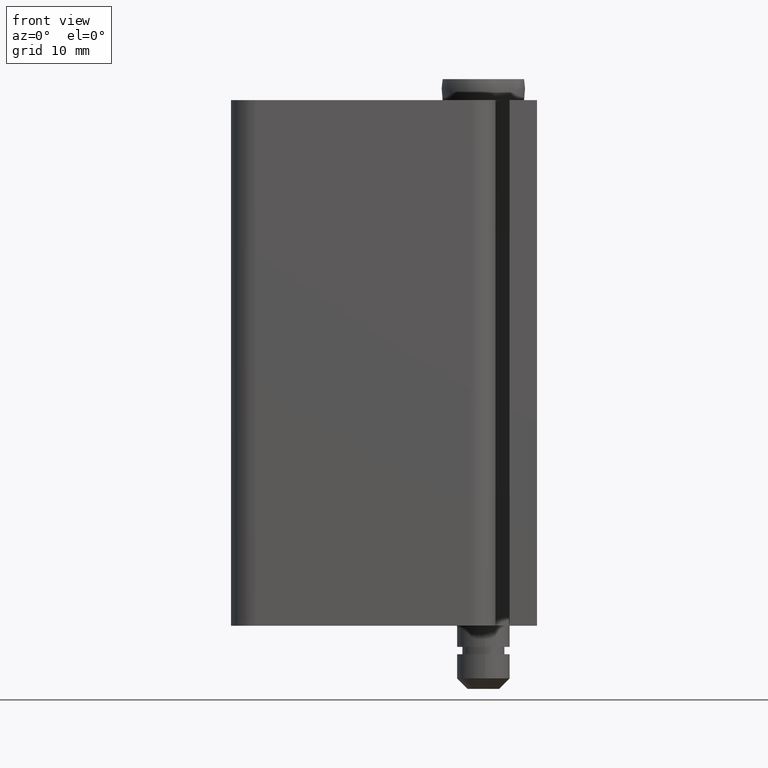
[diagram: clean part render]
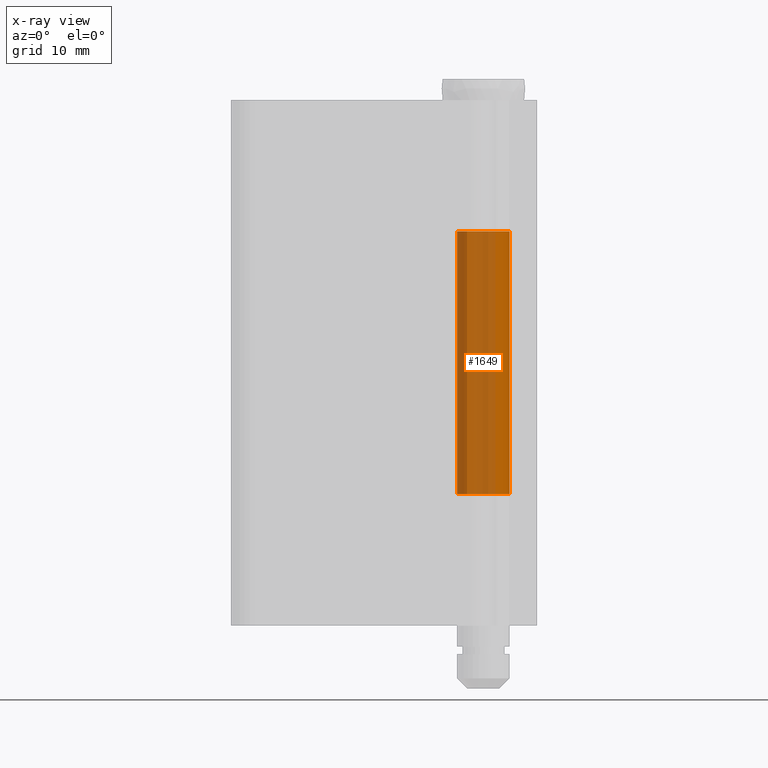
[diagram: x-ray — body ghosted, one internal face saturated and labeled with its STEP entity id]
A machine part, front view, then the same camera in x-ray: the body is ghosted and one INTERNAL B-rep face — a face not visible from any outside direction — is saturated and labeled: STEP entity #1649.
In plain terms, the highlighted face is a freeform B-spline surface patch.
Its self-contained STEP definition (entity closure, byte-faithful):
#1018=CARTESIAN_POINT('',(-1.541836470830650,-1.967927919720765,43.500000000000000));
#1019=VERTEX_POINT('',#1018);
#1033=CARTESIAN_POINT('',(0.422877642025350,-2.463975344818830,43.500000000000000));
#1034=VERTEX_POINT('',#1033);
#1035=CARTESIAN_POINT('',(0.422877642025348,-2.463975344818832,43.500000000000000));
#1036=CARTESIAN_POINT('',(2.419799051206810,-2.121255431407245,43.499999999999986));
#1037=CARTESIAN_POINT('',(2.498130951940486,-0.096652713137914,43.500000000000000));
#1038=CARTESIAN_POINT('',(2.576462852674164,1.927950005131421,43.499999999999986));
#1039=CARTESIAN_POINT('',(0.611990994318493,2.423936266256410,43.500000000000000));
#1040=CARTESIAN_POINT('',(-1.352480864037178,2.919922527381400,43.499999999999986));
#1041=CARTESIAN_POINT('',(-2.244609299981796,1.100785669617494,43.500000000000000));
#1042=CARTESIAN_POINT('',(-3.136737735926413,-0.718351188146408,43.499999999999986));
#1043=CARTESIAN_POINT('',(-1.541836470830649,-1.967927919720763,43.500000000000000));
#1051=(BOUNDED_CURVE()B_SPLINE_CURVE(2,(#1035,#1036,#1037,#1038,#1039,#1040,#1041,#1042,#1043),.UNSPECIFIED.,.F.,.U.)B_SPLINE_CURVE_WITH_KNOTS((3,2,2,2,3),(0.0,0.250000000000000,0.500000000000000,0.750000000000000,1.0),.UNSPECIFIED.)CURVE()GEOMETRIC_REPRESENTATION_ITEM()RATIONAL_B_SPLINE_CURVE((1.0,0.776894001964685,1.0,0.776894001964685,1.0,0.776894001964685,1.0,0.776894001964685,1.0))REPRESENTATION_ITEM(''));
#1052=EDGE_CURVE('',#1034,#1019,#1051,.T.);
#1215=CARTESIAN_POINT('',(0.422877642025350,-2.463975344818830,18.500000000000000));
#1216=VERTEX_POINT('',#1215);
#1222=CARTESIAN_POINT('',(-1.541836470830650,-1.967927919720765,18.500000000000000));
#1223=VERTEX_POINT('',#1222);
#1224=CARTESIAN_POINT('',(0.422877642025348,-2.463975344818832,18.500000000000000));
#1225=CARTESIAN_POINT('',(2.419799051206810,-2.121255431407245,18.499999999999996));
#1226=CARTESIAN_POINT('',(2.498130951940486,-0.096652713137914,18.500000000000000));
#1227=CARTESIAN_POINT('',(2.576462852674164,1.927950005131421,18.499999999999996));
#1228=CARTESIAN_POINT('',(0.611990994318493,2.423936266256410,18.500000000000000));
#1229=CARTESIAN_POINT('',(-1.352480864037178,2.919922527381400,18.499999999999996));
#1230=CARTESIAN_POINT('',(-2.244609299981796,1.100785669617494,18.500000000000000));
#1231=CARTESIAN_POINT('',(-3.136737735926413,-0.718351188146408,18.499999999999996));
#1232=CARTESIAN_POINT('',(-1.541836470830649,-1.967927919720763,18.500000000000000));
#1240=(BOUNDED_CURVE()B_SPLINE_CURVE(2,(#1224,#1225,#1226,#1227,#1228,#1229,#1230,#1231,#1232),.UNSPECIFIED.,.F.,.U.)B_SPLINE_CURVE_WITH_KNOTS((3,2,2,2,3),(0.0,0.250000000000000,0.500000000000000,0.750000000000000,1.0),.UNSPECIFIED.)CURVE()GEOMETRIC_REPRESENTATION_ITEM()RATIONAL_B_SPLINE_CURVE((1.0,0.776894001964685,1.0,0.776894001964685,1.0,0.776894001964685,1.0,0.776894001964685,1.0))REPRESENTATION_ITEM(''));
#1241=EDGE_CURVE('',#1216,#1223,#1240,.T.);
#1605=CARTESIAN_POINT('',(-1.541836470830650,-1.967927919720765,43.500000000000000));
#1606=CARTESIAN_POINT('',(-1.541836470830650,-1.967927919720765,18.500000000000000));
#1607=QUASI_UNIFORM_CURVE('',1,(#1605,#1606),.UNSPECIFIED.,.F.,.U.);
#1608=EDGE_CURVE('',#1019,#1223,#1607,.T.);
#1613=CARTESIAN_POINT('',(0.358233377185832,-2.474200648183172,44.125000000000007));
#1614=CARTESIAN_POINT('',(0.358233377185832,-2.474200648183172,17.859375000000000));
#1615=CARTESIAN_POINT('',(2.406889229988445,-2.177580846802105,44.125000000000007));
#1616=CARTESIAN_POINT('',(2.406889229988445,-2.177580846802105,17.859375000000000));
#1617=CARTESIAN_POINT('',(2.497598546206012,-0.109551366899779,44.125000000000007));
#1618=CARTESIAN_POINT('',(2.497598546206012,-0.109551366899779,17.859375000000000));
#1619=CARTESIAN_POINT('',(2.588307862423581,1.958478113002548,44.125000000000007));
#1620=CARTESIAN_POINT('',(2.588307862423581,1.958478113002548,17.859375000000000));
#1621=CARTESIAN_POINT('',(0.573490945149954,2.433332721974331,44.125000000000007));
#1622=CARTESIAN_POINT('',(0.573490945149954,2.433332721974331,17.859375000000000));
#1623=CARTESIAN_POINT('',(-1.441325972123672,2.908187330946116,44.125000000000007));
#1624=CARTESIAN_POINT('',(-1.441325972123672,2.908187330946116,17.859375000000000));
#1625=CARTESIAN_POINT('',(-2.283658854798346,1.017301447409323,44.125000000000007));
#1626=CARTESIAN_POINT('',(-2.283658854798346,1.017301447409323,17.859375000000000));
#1627=CARTESIAN_POINT('',(-3.125991737473021,-0.873584436127469,44.125000000000007));
#1628=CARTESIAN_POINT('',(-3.125991737473021,-0.873584436127469,17.859375000000000));
#1629=CARTESIAN_POINT('',(-1.425405478078099,-2.053830378357703,44.125000000000007));
#1630=CARTESIAN_POINT('',(-1.425405478078099,-2.053830378357703,17.859375000000000));
#1638=(BOUNDED_SURFACE()B_SPLINE_SURFACE(1,2,((#1613,#1615,#1617,#1619,#1621,#1623,#1625,#1627,#1629),(#1614,#1616,#1618,#1620,#1622,#1624,#1626,#1628,#1630)),.UNSPECIFIED.,.F.,.F.,.U.)B_SPLINE_SURFACE_WITH_KNOTS((2,2),(3,2,2,2,3),(0.0,26.265625000000011),(0.0,3.602686164283317,7.205372328566634,10.808058492849950,14.410744657133270),.UNSPECIFIED.)GEOMETRIC_REPRESENTATION_ITEM()RATIONAL_B_SPLINE_SURFACE(((1.0,0.770235040753384,1.0,0.770235040753384,1.0,0.770235040753384,1.0,0.770235040753384,1.0),(1.0,0.770235040753384,1.0,0.770235040753384,1.0,0.770235040753384,1.0,0.770235040753384,1.0)))REPRESENTATION_ITEM('')SURFACE());
#1639=CARTESIAN_POINT('',(0.422877642025350,-2.463975344818830,43.500000000000000));
#1640=CARTESIAN_POINT('',(0.422877642025350,-2.463975344818830,18.500000000000000));
#1641=QUASI_UNIFORM_CURVE('',1,(#1639,#1640),.UNSPECIFIED.,.F.,.U.);
#1642=EDGE_CURVE('',#1034,#1216,#1641,.T.);
#1643=ORIENTED_EDGE('',*,*,#1642,.F.);
#1644=ORIENTED_EDGE('',*,*,#1052,.T.);
#1645=ORIENTED_EDGE('',*,*,#1608,.T.);
#1646=ORIENTED_EDGE('',*,*,#1241,.F.);
#1647=EDGE_LOOP('',(#1643,#1644,#1645,#1646));
#1648=FACE_OUTER_BOUND('',#1647,.T.);
#1649=ADVANCED_FACE('',(#1648),#1638,.F.);